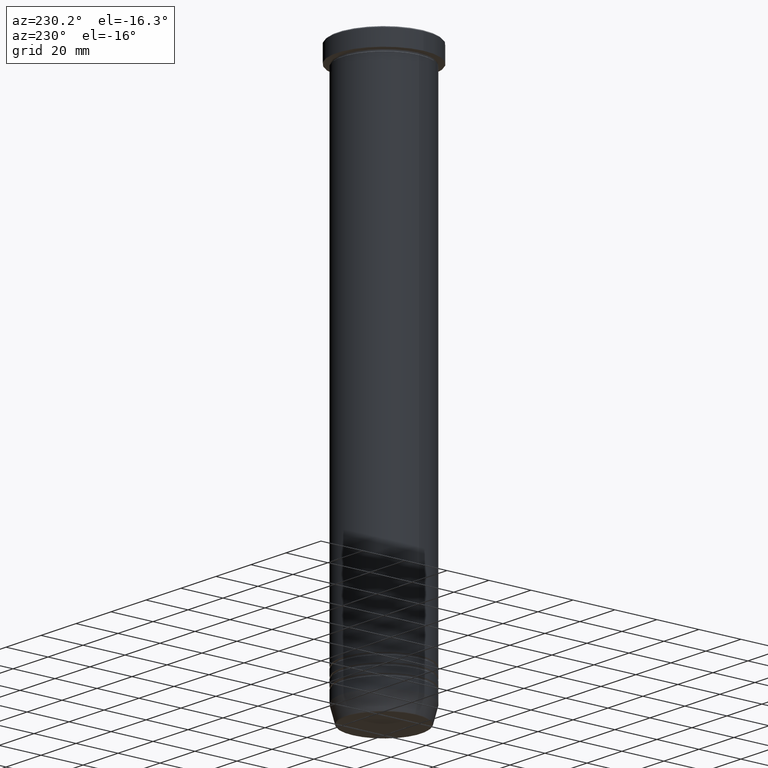
[diagram: clean part render]
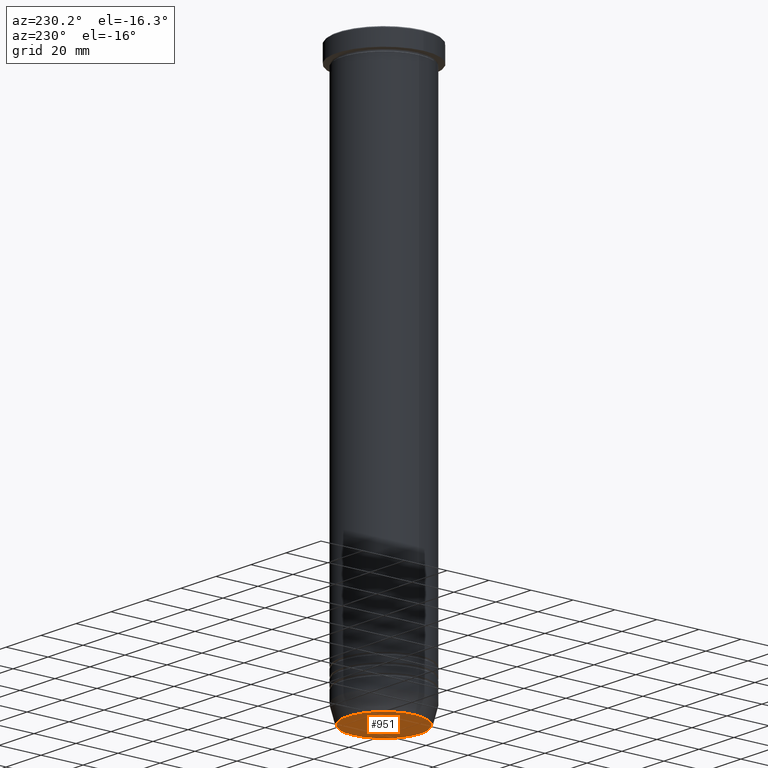
[diagram: same view with one face highlighted and labeled with its STEP entity id]
A machine part, auxiliary view. The second image highlights one B-rep face of the part: STEP entity #951.
In plain terms, the highlighted planar face has unit normal (0, -0, 1).
Its self-contained STEP definition (entity closure, byte-faithful):
#60 = VERTEX_POINT ( 'NONE', #629 ) ;
#144 = DIRECTION ( 'NONE',  ( 0.000000000000000000, 0.000000000000000000, -1.000000000000000000 ) ) ;
#147 = DIRECTION ( 'NONE',  ( 0.000000000000000000, 0.000000000000000000, -1.000000000000000000 ) ) ;
#332 = DIRECTION ( 'NONE',  ( 0.000000000000000000, -0.000000000000000000, 1.000000000000000000 ) ) ;
#356 = CARTESIAN_POINT ( 'NONE',  ( -17.47274296656153325, 2.169366823916867714E-15, -259.9999999999999432 ) ) ;
#458 = FACE_OUTER_BOUND ( 'NONE', #834, .T. ) ;
#473 = DIRECTION ( 'NONE',  ( 1.000000000000000000, 0.000000000000000000, 0.000000000000000000 ) ) ;
#487 = ORIENTED_EDGE ( 'NONE', *, *, #632, .T. ) ;
#496 = DIRECTION ( 'NONE',  ( 1.000000000000000000, 0.000000000000000000, 0.000000000000000000 ) ) ;
#502 = CIRCLE ( 'NONE', #602, 17.47274296656153325 ) ;
#512 = AXIS2_PLACEMENT_3D ( 'NONE', #709, #332, #496 ) ;
#602 = AXIS2_PLACEMENT_3D ( 'NONE', #899, #147, #1039 ) ;
#625 = ORIENTED_EDGE ( 'NONE', *, *, #733, .T. ) ;
#629 = CARTESIAN_POINT ( 'NONE',  ( 17.47274296656153325, 0.000000000000000000, -259.9999999999999432 ) ) ;
#632 = EDGE_CURVE ( 'NONE', #847, #60, #502, .T. ) ;
#655 = CIRCLE ( 'NONE', #722, 17.47274296656153325 ) ;
#709 = CARTESIAN_POINT ( 'NONE',  ( 0.000000000000000000, 2.571758278209440951E-14, -259.9999999999999432 ) ) ;
#722 = AXIS2_PLACEMENT_3D ( 'NONE', #878, #144, #473 ) ;
#733 = EDGE_CURVE ( 'NONE', #60, #847, #655, .T. ) ;
#786 = PLANE ( 'NONE',  #512 ) ;
#834 = EDGE_LOOP ( 'NONE', ( #625, #487 ) ) ;
#847 = VERTEX_POINT ( 'NONE', #356 ) ;
#878 = CARTESIAN_POINT ( 'NONE',  ( 0.000000000000000000, 0.000000000000000000, -259.9999999999999432 ) ) ;
#899 = CARTESIAN_POINT ( 'NONE',  ( 0.000000000000000000, 0.000000000000000000, -259.9999999999999432 ) ) ;
#951 = ADVANCED_FACE ( 'NONE', ( #458 ), #786, .F. ) ;
#1039 = DIRECTION ( 'NONE',  ( 1.000000000000000000, 0.000000000000000000, 0.000000000000000000 ) ) ;